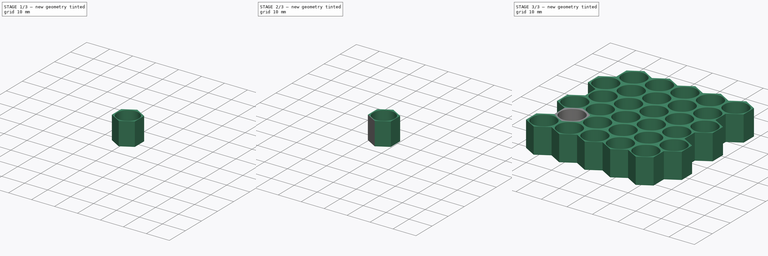
[diagram: build sequence overview — one tinted view per stage of 3, left to right]
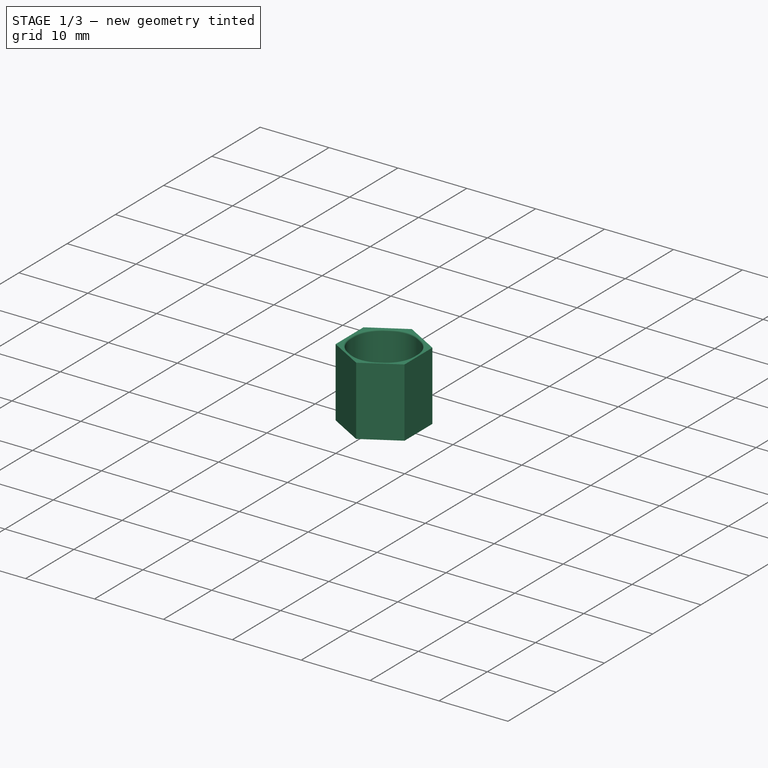
[diagram: stage 1 of 3 — iso view after this stage's code; geometry added in this stage tinted green]
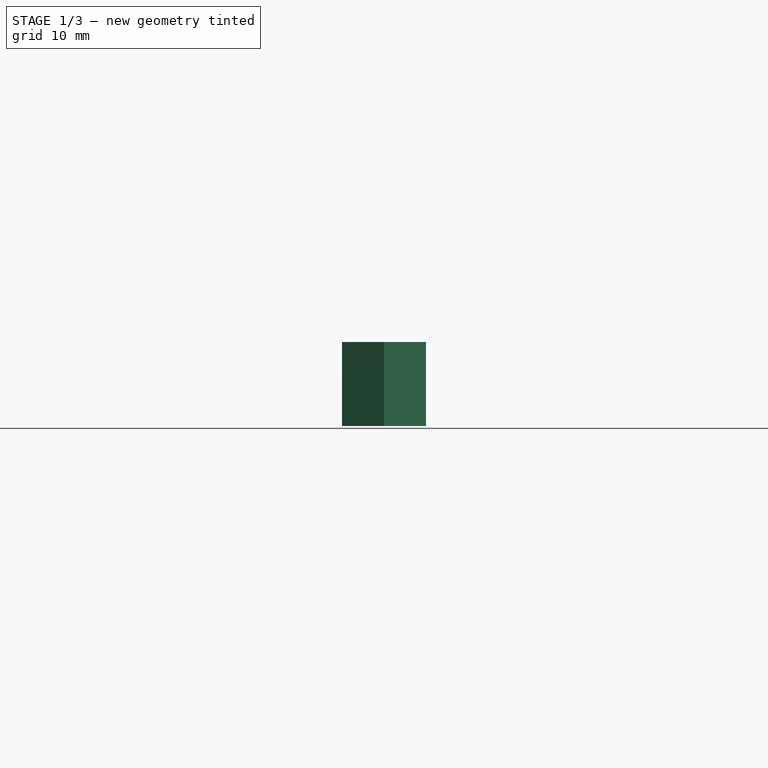
[diagram: stage 1 of 3 — front view after this stage's code; geometry added in this stage tinted green]
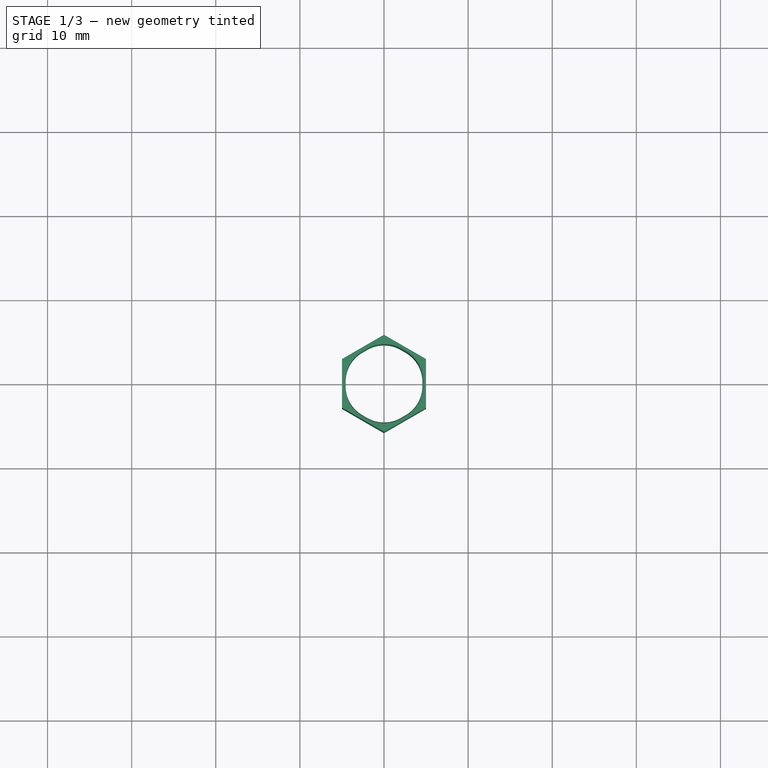
[diagram: stage 1 of 3 — top view after this stage's code; geometry added in this stage tinted green]
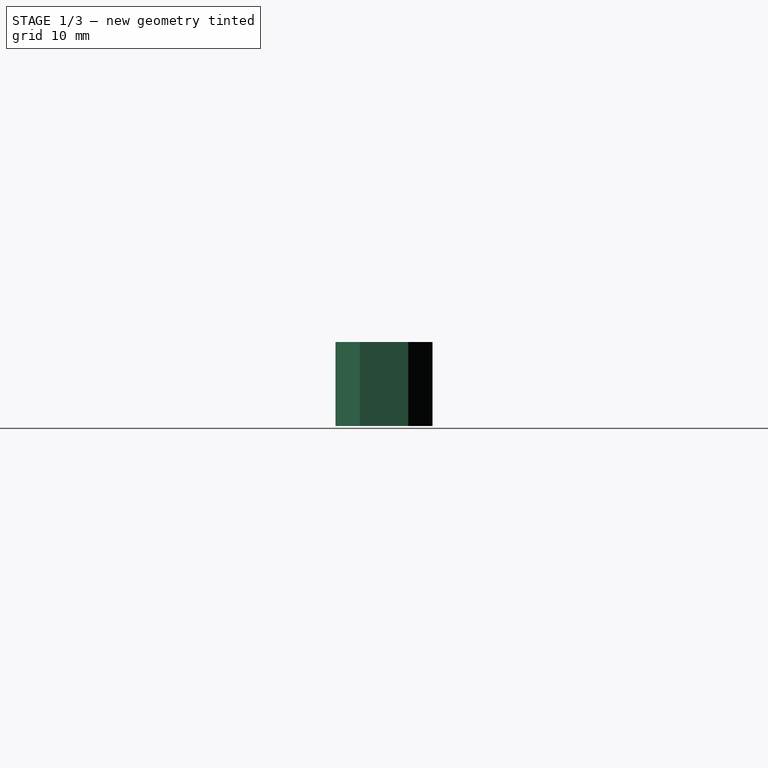
[diagram: stage 1 of 3 — right view after this stage's code; geometry added in this stage tinted green]
FCSTD DOCUMENT  (FreeCAD 0.20R27319 (Git))
Label: Honeycomb
License: All rights reserved
LicenseURL: http://en.wikipedia.org/wiki/All_rights_reserved
objects: Part::FeaturePython×2, Spreadsheet::Sheet×1, Sketcher::SketchObject×1, PartDesign::Pad×1, PartDesign::Fillet×1, PartDesign::Body×1, Part::MultiFuse×1
note: 8 computed .brp shape members not serialized (recipe doc carries the construction recipe); baked Part::Feature solids carry a one-line shape summary decoded from their .brp

FEATURE [Spreadsheet::Sheet] Spreadsheet
  cells = A1=ControlDimension; B1(ControlDimension)=10; A2=X_Repeat; B2(X_Repeat)=5; A3=Y_Repeat; B3(Y_Repeat)=3; A4=Thickness; B4(Thickness)=0.5; A5=FilletSize; B5(FilletSize)=4
FEATURE [Sketcher::SketchObject] Sketch001
  FullyConstrained = true
  MapMode = 5
  Support = -> [XY_Plane001]
  expr: Constraints[38] = Spreadsheet.Thickness
  expr: Constraints[41] = Spreadsheet.ControlDimension
  expr: Constraints[72] = Spreadsheet.FilletSize
  sketch-geometry (26):
    g0: LineSegment StartX=5 StartY=-2.88675 StartZ=0 EndX=5 EndY=2.88675 EndZ=0
    g1: LineSegment StartX=5 StartY=2.88675 StartZ=0 EndX=0 EndY=5.7735 EndZ=0
    g2: LineSegment StartX=1e-16 StartY=5.7735 StartZ=0 EndX=-5 EndY=2.88675 EndZ=0
    g3: LineSegment StartX=-5 StartY=2.88675 StartZ=0 EndX=-5 EndY=-2.88675 EndZ=0
    g4: LineSegment StartX=-5 StartY=-2.88675 StartZ=0 EndX=0 EndY=-5.7735 EndZ=0
    g5: LineSegment StartX=3e-16 StartY=-5.7735 StartZ=0 EndX=5 EndY=-2.88675 EndZ=0
    g6: Circle CenterX=0 CenterY=0 CenterZ=0 NormalX=0 NormalY=0 NormalZ=1 AngleXU=0 Radius=5.7735
    g7: LineSegment StartX=4.56699 StartY=-2.63675 StartZ=0 EndX=4.56699 EndY=2.63675 EndZ=0
    g8: LineSegment StartX=4.56699 StartY=2.63675 StartZ=0 EndX=0 EndY=5.2735 EndZ=0
    g9: LineSegment StartX=4e-16 StartY=5.2735 StartZ=0 EndX=-4.56699 EndY=2.63675 EndZ=0
    g10: LineSegment StartX=-4.56699 StartY=2.63675 StartZ=0 EndX=-4.56699 EndY=-2.63675 EndZ=0
    g11: LineSegment StartX=-4.56699 StartY=-2.63675 StartZ=0 EndX=0 EndY=-5.2735 EndZ=0
    g12: LineSegment StartX=2e-16 StartY=-5.2735 StartZ=0 EndX=4.56699 EndY=-2.63675 EndZ=0
    g13: Circle CenterX=0 CenterY=0 CenterZ=0 NormalX=0 NormalY=0 NormalZ=1 AngleXU=0 Radius=5.2735
    g14: LineSegment StartX=-2.56699 StartY=3.79145 StartZ=0 EndX=-2 EndY=4.1188 EndZ=0
    g15: LineSegment StartX=2 StartY=4.1188 StartZ=0 EndX=2.56699 EndY=3.79145 EndZ=0
    g16: LineSegment StartX=4.56699 StartY=0.32735 StartZ=0 EndX=4.56699 EndY=-0.32735 EndZ=0
    g17: LineSegment StartX=2.56699 StartY=-3.79145 StartZ=0 EndX=2 EndY=-4.1188 EndZ=0
    g18: LineSegment StartX=-2.56699 StartY=-3.79145 StartZ=0 EndX=-2 EndY=-4.1188 EndZ=0
    g19: LineSegment StartX=-4.56699 StartY=-0.32735 StartZ=0 EndX=-4.56699 EndY=0.32735 EndZ=0
    g20: ArcOfCircle CenterX=-0.566987 CenterY=0.32735 CenterZ=0 NormalX=0 NormalY=0 NormalZ=1 AngleXU=0 Radius=4 StartAngle=2.0944 EndAngle=3.14159
    g21: ArcOfCircle CenterX=8.0536e-12 CenterY=0.654701 CenterZ=0 NormalX=0 NormalY=0 NormalZ=1 AngleXU=0 Radius=4 StartAngle=1.0472 EndAngle=2.0944
    g22: ArcOfCircle CenterX=0.566987 CenterY=0.32735 CenterZ=0 NormalX=0 NormalY=0 NormalZ=1 AngleXU=0 Radius=4 StartAngle=3.214e-13 EndAngle=1.0472
    g23: ArcOfCircle CenterX=0.566987 CenterY=-0.32735 CenterZ=0 NormalX=0 NormalY=0 NormalZ=1 AngleXU=0 Radius=4 StartAngle=5.23599 EndAngle=6.28319
    g24: ArcOfCircle CenterX=7.5e-15 CenterY=-0.654701 CenterZ=0 NormalX=0 NormalY=0 NormalZ=1 AngleXU=0 Radius=4 StartAngle=4.18879 EndAngle=5.23599
    g25: ArcOfCircle CenterX=-0.566987 CenterY=-0.32735 CenterZ=0 NormalX=0 NormalY=0 NormalZ=1 AngleXU=0 Radius=4 StartAngle=3.14159 EndAngle=4.18879
  constraints (65):
    c: Coincident(g0,g1)
    c: Coincident(g1,g2)
    c: Coincident(g2,g3)
    c: Coincident(g3,g4)
    c: Coincident(g4,g5)
    c: Coincident(g5,g0)
    c: Equal(g0, g1-g5) x5
    c: PointOnObject(g0,g6)
    c: PointOnObject(g1,g6)
    c: PointOnObject(g2,g6)
    c: PointOnObject(g3,g6)
    c: PointOnObject(g4,g6)
    c: PointOnObject(g5,g6)
    c: Coincident(g6,g-1)
    c: Vertical(g0)
    c: Coincident(g7,g8)
    c: Coincident(g8,g9)
    c: Coincident(g9,g10)
    c: Coincident(g10,g11)
    c: Coincident(g11,g12)
    c: Coincident(g12,g7)
    c: Equal(g7, g8-g12) x5
    c: PointOnObject(g7,g13)
    c: PointOnObject(g8,g13)
    c: PointOnObject(g9,g13)
    c: PointOnObject(g10,g13)
    c: PointOnObject(g11,g13)
    c: PointOnObject(g12,g13)
    c: Coincident(g13,g6)
    c: Parallel(g7,g0)
    c: DistanceY(g4,g11) = 0.5
    c: DistanceY(g0,g1) = 8.66025
    c: DistanceY(g3,g3) = 5.7735
    c: DistanceX(g2,g0) = 10
    c: PointOnObject(g14,g9)
    c: PointOnObject(g14,g9)
    c: PointOnObject(g15,g8)
    c: PointOnObject(g15,g8)
    c: PointOnObject(g16,g7)
    c: PointOnObject(g16,g7)
    c: PointOnObject(g17,g12)
    c: PointOnObject(g17,g12)
    c: PointOnObject(g18,g11)
    c: PointOnObject(g18,g11)
    c: PointOnObject(g19,g10)
    c: PointOnObject(g19,g10)
    c: Coincident(g21,g14)
    c: Equal(g14,g15)
    c: Equal(g15,g16)
    c: Equal(g16,g17)
    c: Equal(g17,g18)
    c: Equal(g18,g19)
    c: Equal(g20,g21)
    c: Tangent(g20,g19) = 1.5708
    c: Tangent(g20,g14) = 1.5708
    c: Tangent(g21,g15) = 1.5708
    c: Tangent(g22,g15) = 1.5708
    c: Tangent(g22,g16) = 1.5708
    c: Tangent(g23,g16) = 1.5708
    c: Tangent(g23,g17) = 1.5708
    c: Tangent(g24,g17) = 1.5708
    c: Tangent(g24,g18) = -1.5708
    c: Tangent(g25,g18) = -1.5708
    c: Tangent(g25,g19) = 1.5708
    c: Radius(g20) = 4
FEATURE [PartDesign::Pad] Pad001  label="Hex Basic"
  Direction = (0,0,1)
  Length = 10
  Length2 = 10
  Profile = -> Sketch001
  ReferenceAxis = -> Sketch001 [N_Axis]
  Type = 0
FEATURE [PartDesign::Fillet] Fillet
  Base = -> Pad001 [Edge28,Edge31,Edge34,Edge37,Edge40,Edge43,Edge46,Edge49,Edge52,Edge54,Edge22,Edge25]
  BaseFeature = -> Pad001
  Radius = 0.2
  SupportTransform = false
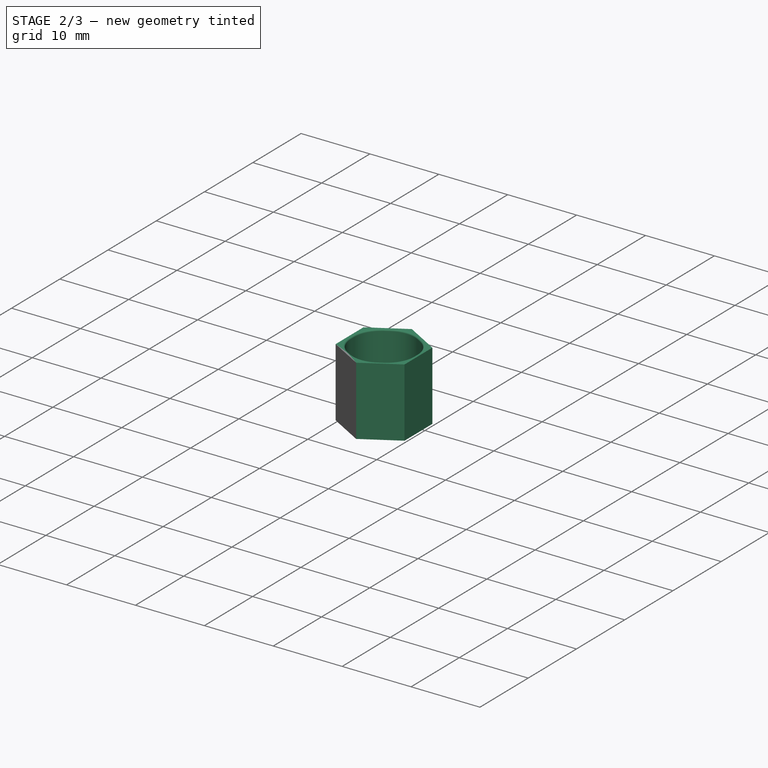
[diagram: stage 2 of 3 — iso view after this stage's code; geometry added in this stage tinted green]
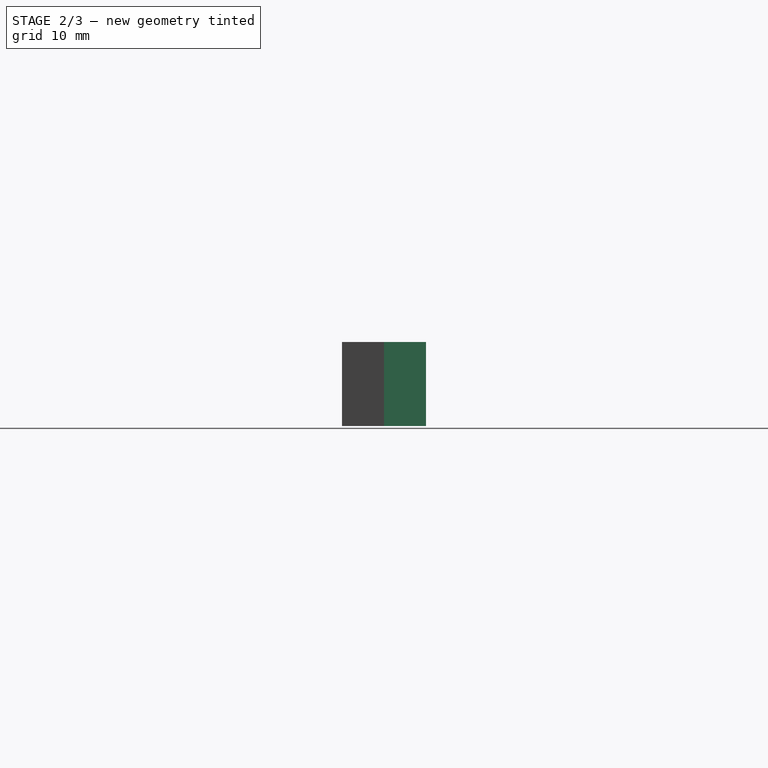
[diagram: stage 2 of 3 — front view after this stage's code; geometry added in this stage tinted green]
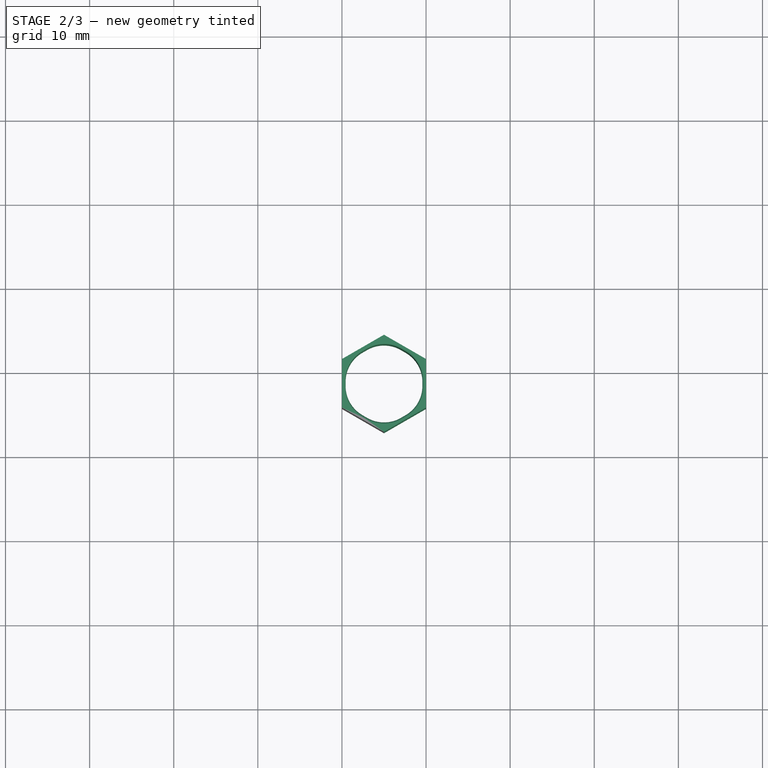
[diagram: stage 2 of 3 — top view after this stage's code; geometry added in this stage tinted green]
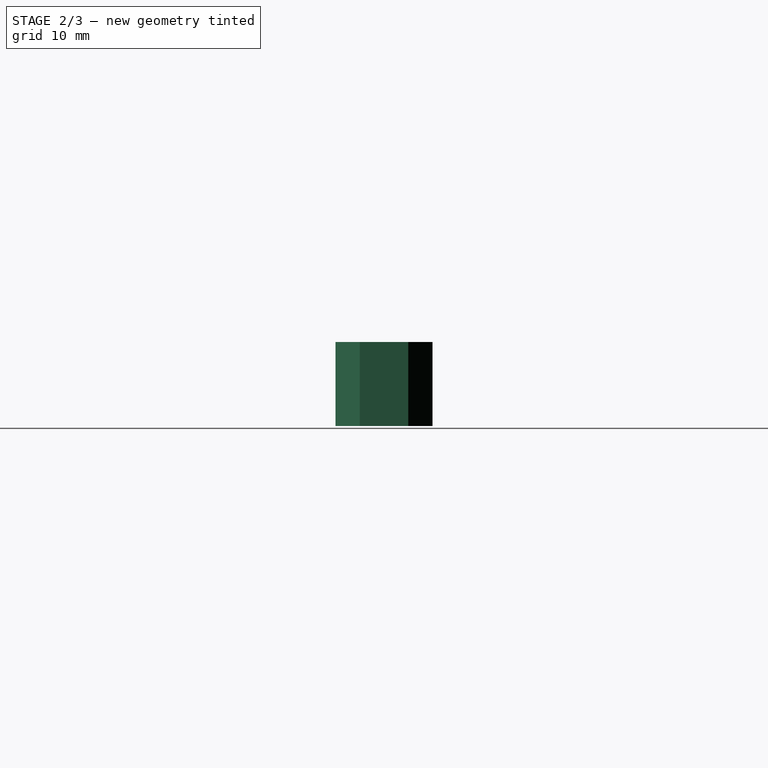
[diagram: stage 2 of 3 — right view after this stage's code; geometry added in this stage tinted green]
FEATURE [PartDesign::Body] Body001  label="Hex"
  Group = -> [Sketch001,Pad001,Fillet]
  Origin = -> Origin001
  Tip = -> Fillet
FEATURE [Part::FeaturePython] Clone  label="Hex Offset"  # Draft clone (typed FeaturePython)
  AttacherType = Attacher::AttachEngine3D
  Fuse = false
  Objects = -> [Body001]
  Placement = pos=(5,8.66025,0) rot=(0,0,1;0rad)
  Scale = (1,1,1)
  expr: .Placement.Base.x = Spreadsheet.ControlDimension / 2
  expr: .Placement.Base.y = Spreadsheet.ControlDimension * sin(60)
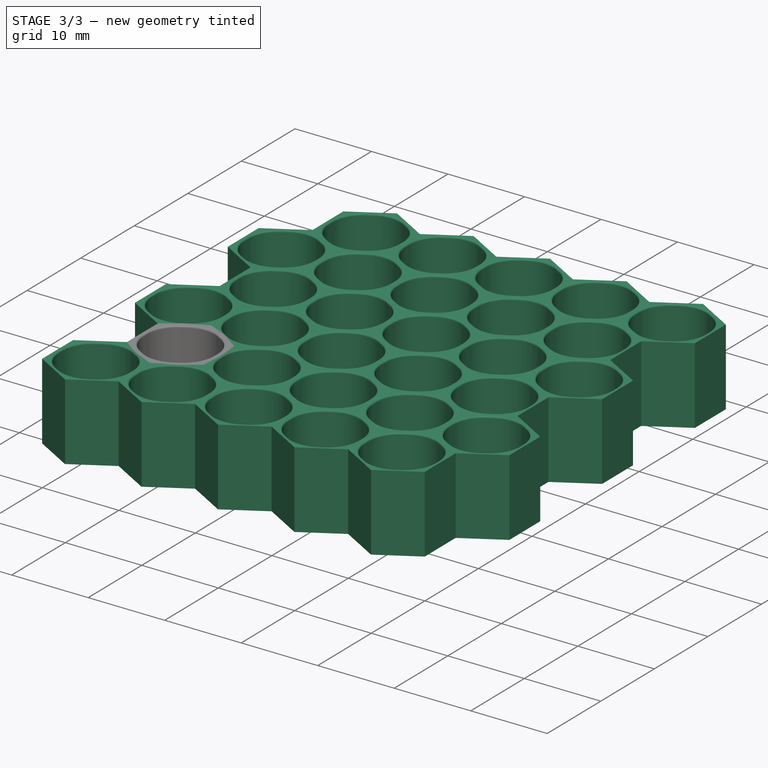
[diagram: stage 3 of 3 — iso view after this stage's code; geometry added in this stage tinted green]
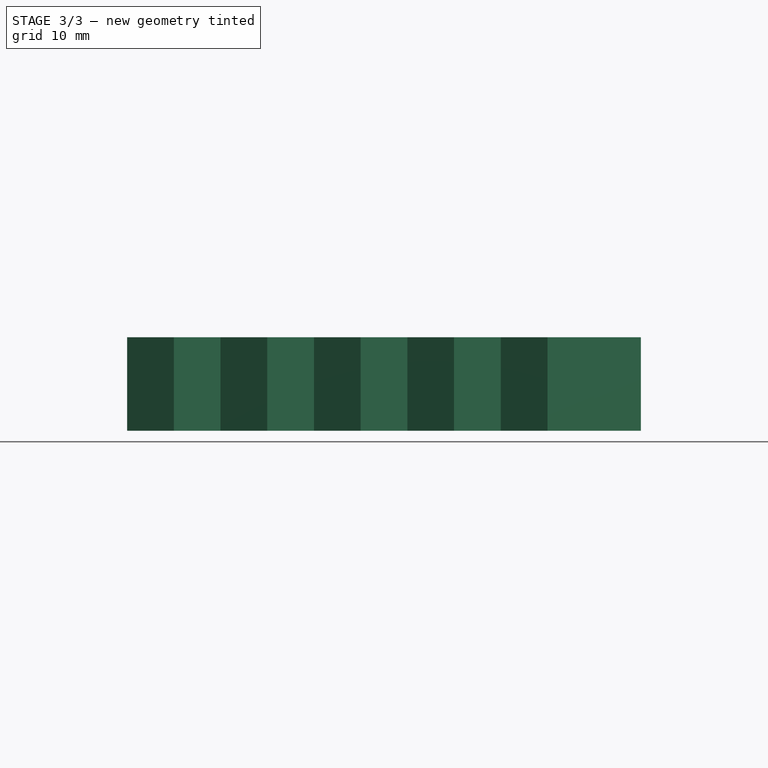
[diagram: stage 3 of 3 — front view after this stage's code; geometry added in this stage tinted green]
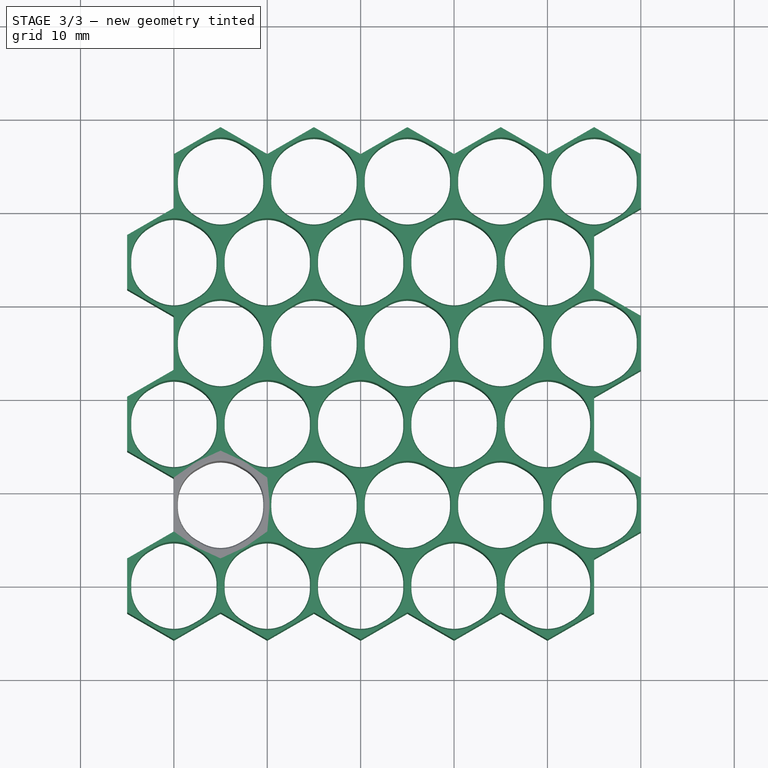
[diagram: stage 3 of 3 — top view after this stage's code; geometry added in this stage tinted green]
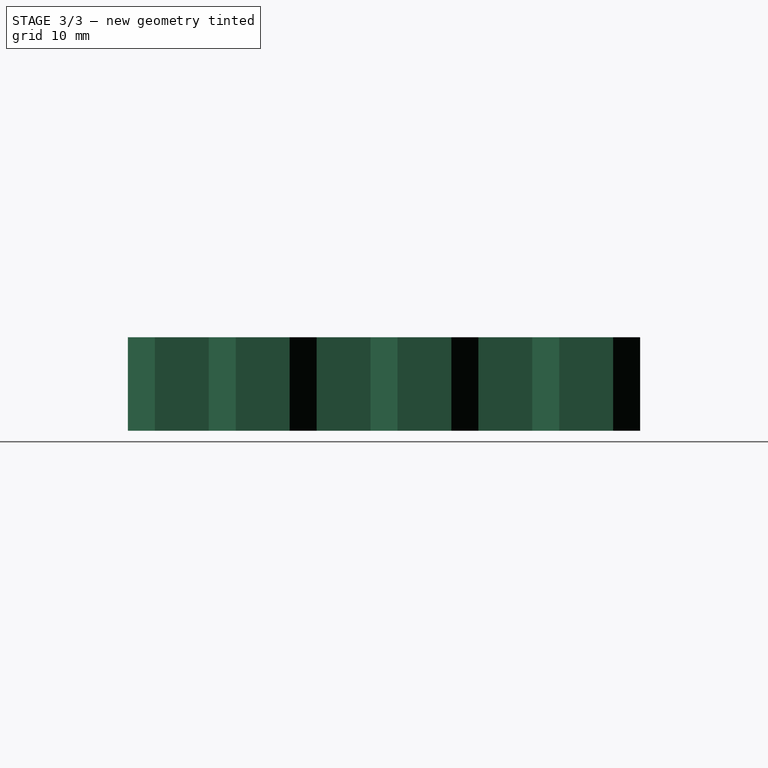
[diagram: stage 3 of 3 — right view after this stage's code; geometry added in this stage tinted green]
FEATURE [Part::MultiFuse] Fusion  label="Hex Pair"
  Shapes = -> [Body001,Clone]
FEATURE [Part::FeaturePython] Array002  label="Hex array"  # Draft array (typed FeaturePython)
  AlwaysSyncPlacement = false
  Angle = 360
  ArrayType = 0
  Axis = (0,0,1)
  Base = -> Fusion
  Center = (0,0,0)
  Count = 15
  ExpandArray = false
  Fuse = false
  IntervalAxis = (0,0,0)
  IntervalX = (10,0,0)
  IntervalY = (0,17.3205,0)
  IntervalZ = (0,0,100)
  NumberCircles = 3
  NumberPolar = 5
  NumberX = 5
  NumberY = 3
  NumberZ = 1
  PlacementList = 15 placements: [(0,0,0),(0,17.3205,0),(0,34.641,0),(10,0,0),(10,17.3205,0),(10,34.641,0),(20,0,0),(20,17.3205,0),(20,34.641,0),(30,0,0),(30,17.3205,0),(30,34.641,0),(40,0,0),(40,17.3205,0),(40,34.641,0)]
  RadialDistance = 50
  ScaleList = (15) [(1,1,1),(1,1,1),(1,1,1),(1,1,1),(1,1,1),(1,1,1),(1,1,1),(1,1,1),(1,1,1),(1,1,1),(1,1,1),(1,1,1),(1,1,1),(1,1,1),(1,1,1)]
  Symmetry = 1
  TangentialDistance = 25
  expr: .IntervalX.x = Spreadsheet.ControlDimension
  expr: .IntervalY.y = 2 * Spreadsheet.ControlDimension * sin(60)
  expr: NumberX = Spreadsheet.X_Repeat
  expr: NumberY = Spreadsheet.Y_Repeat
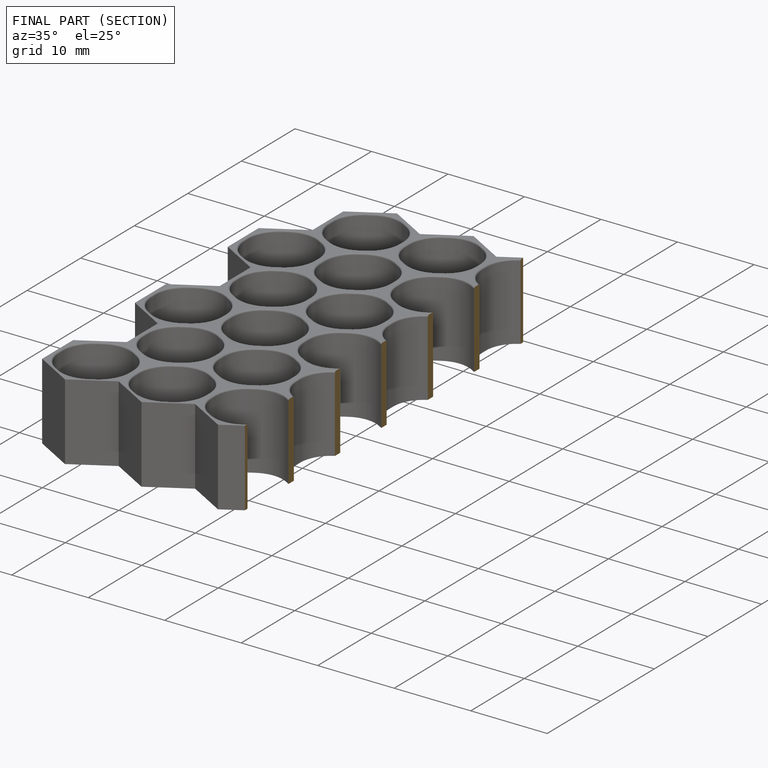
[diagram: finished part — half-section view (interior)]
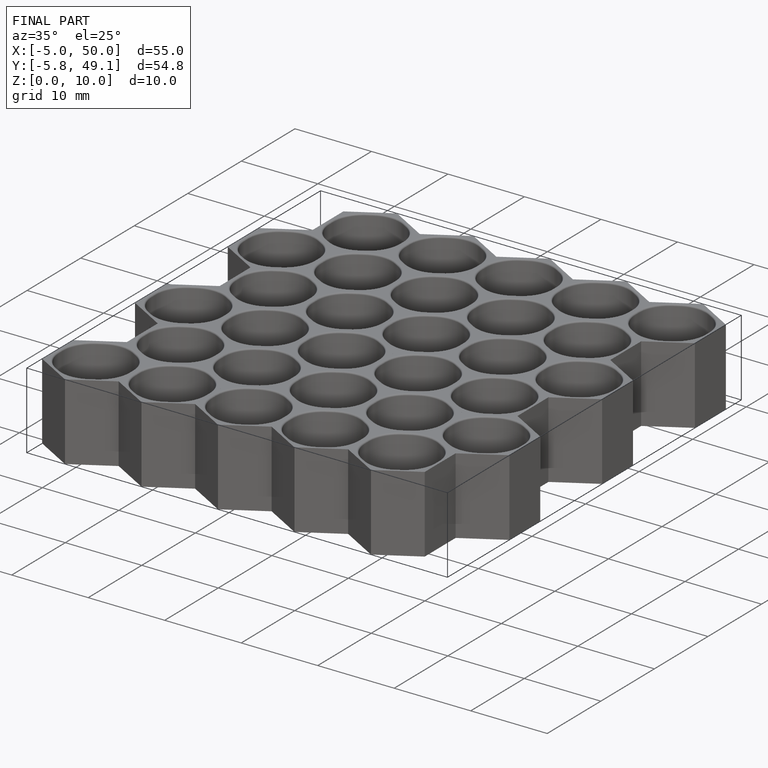
[diagram: finished part — iso view with bounding-box wireframe]
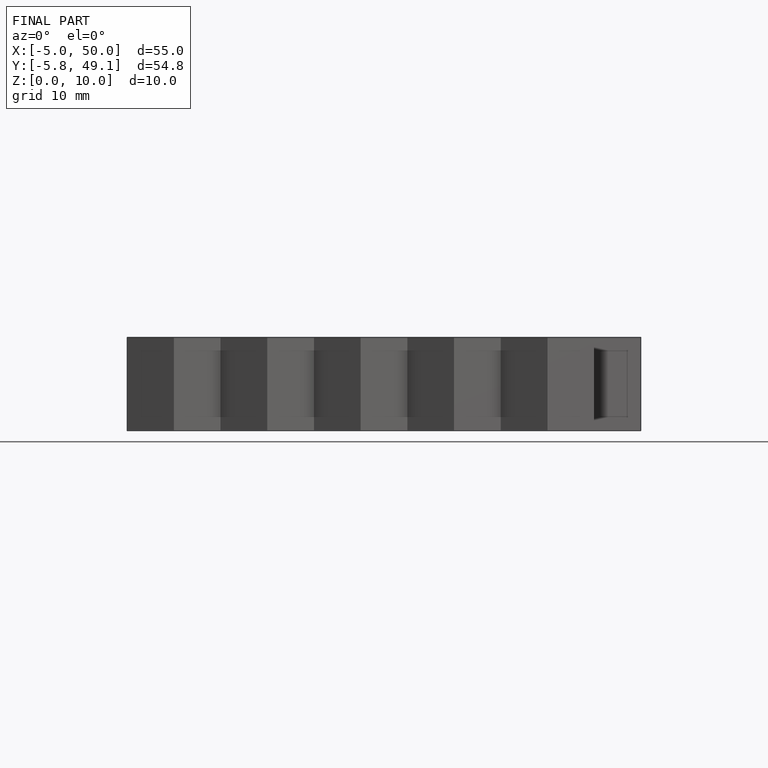
[diagram: finished part — front view with bounding-box wireframe]
